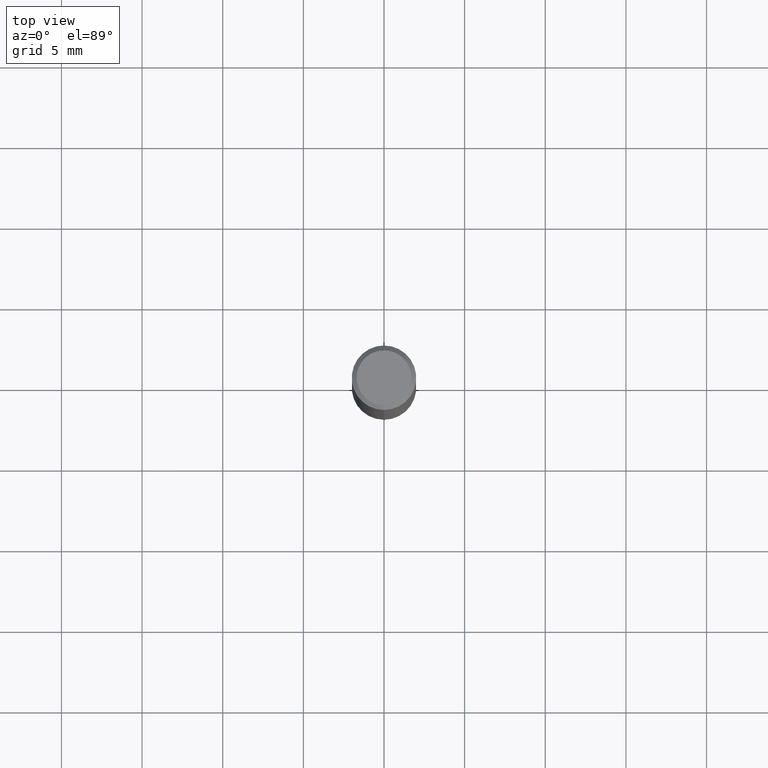
[diagram: clean part render]
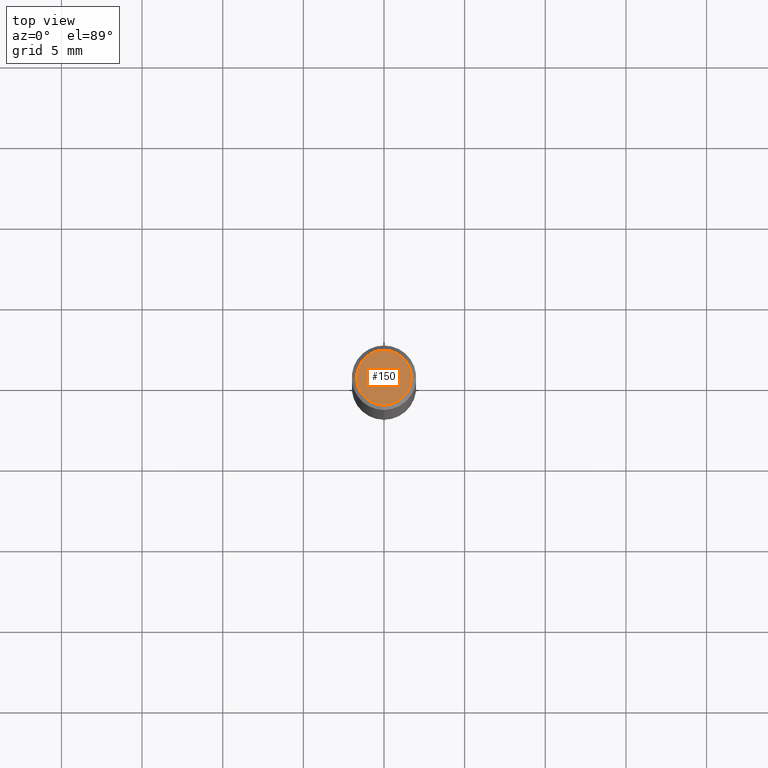
[diagram: same view with one face highlighted and labeled with its STEP entity id]
A machine part, top view. The second image highlights one B-rep face of the part: STEP entity #150.
In plain terms, the highlighted planar face has unit normal (-0, 0, 1).
Its self-contained STEP definition (entity closure, byte-faithful):
#102=VERTEX_POINT('',#239);
#108=EDGE_CURVE('',#152,#102,#247,.T.);
#124=EDGE_CURVE('',#102,#152,#265,.T.);
#150=ADVANCED_FACE('',(#294),#295,.T.);
#152=VERTEX_POINT('',#297);
#239=CARTESIAN_POINT('',(0.0,1.7,0.0));
#247=CIRCLE('',#396,1.7);
#265=CIRCLE('',#421,1.7);
#294=FACE_OUTER_BOUND('',#458,.T.);
#295=PLANE('',#459);
#297=CARTESIAN_POINT('',(2.08183080149804E-016,-1.7,0.0));
#396=AXIS2_PLACEMENT_3D('',#566,#567,#568);
#421=AXIS2_PLACEMENT_3D('',#591,#592,#593);
#458=EDGE_LOOP('',(#625,#626));
#459=AXIS2_PLACEMENT_3D('',#627,#628,#629);
#566=CARTESIAN_POINT('',(0.0,0.0,0.0));
#567=DIRECTION('',(0.0,0.0,-1.0));
#568=DIRECTION('',(0.0,1.0,0.0));
#591=CARTESIAN_POINT('',(0.0,0.0,0.0));
#592=DIRECTION('',(0.0,0.0,-1.0));
#593=DIRECTION('',(0.0,1.0,0.0));
#625=ORIENTED_EDGE('',*,*,#124,.F.);
#626=ORIENTED_EDGE('',*,*,#108,.F.);
#627=CARTESIAN_POINT('',(0.0,0.85,0.0));
#628=DIRECTION('',(-0.0,0.0,1.0));
#629=DIRECTION('',(0.0,-1.0,0.0));